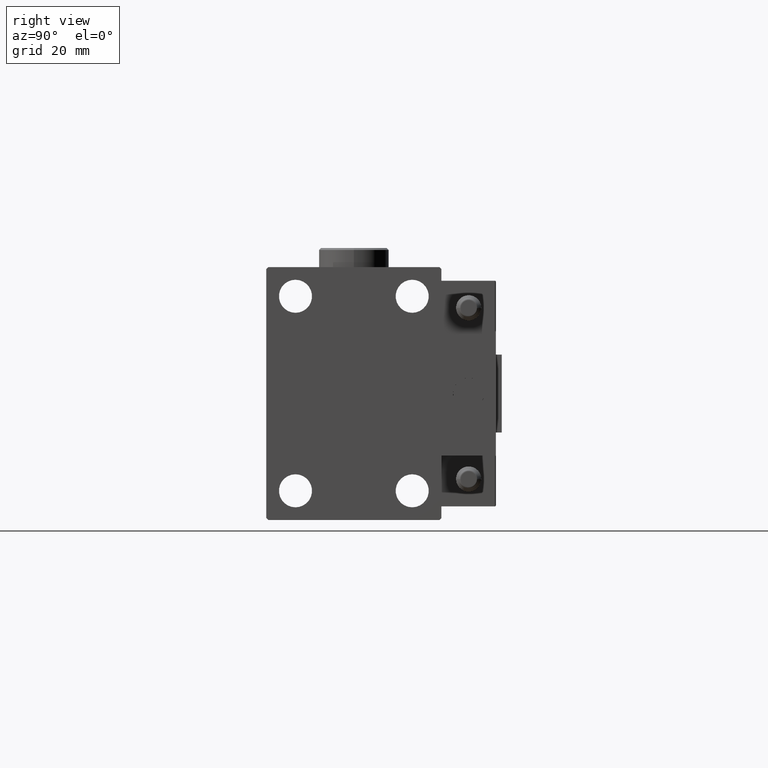
[diagram: clean part render]
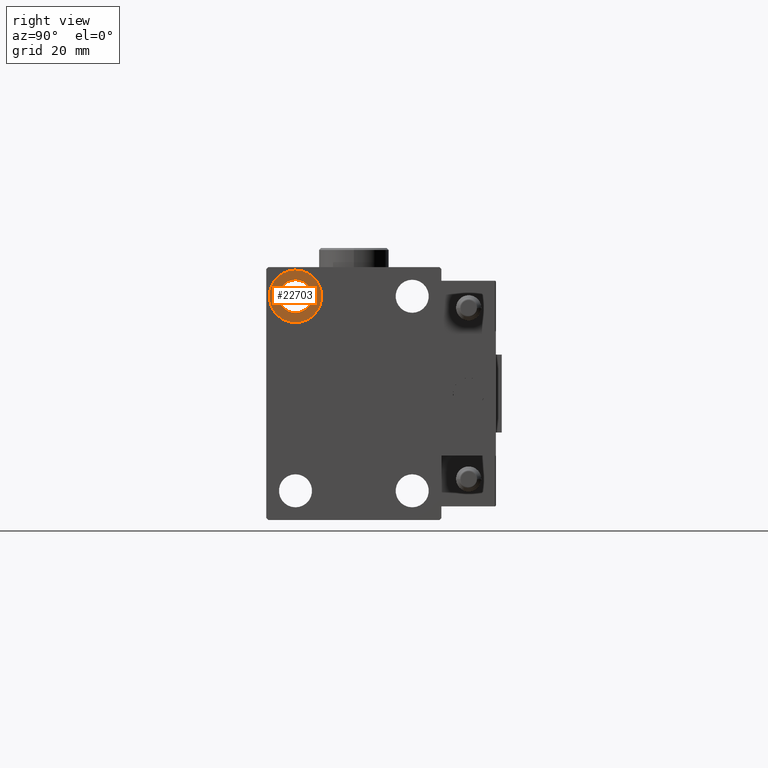
[diagram: same view with one face highlighted and labeled with its STEP entity id]
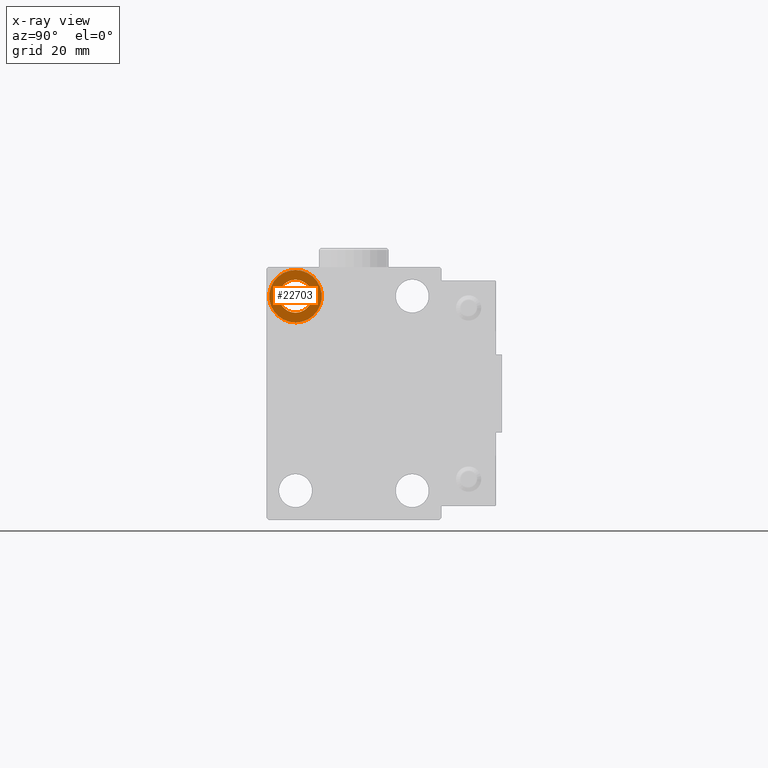
[diagram: x-ray of the same camera — body ghosted, the highlighted face saturated]
A machine part, right view. The second image highlights one B-rep face of the part: STEP entity #22703.
The next image is the same camera in x-ray: the body ghosted, the highlighted face saturated — about 0% of this face is hidden behind the body in this view.
In plain terms, the highlighted planar face has unit normal (1, 0, 0).
Its self-contained STEP definition (entity closure, byte-faithful):
#1112 = EDGE_LOOP ( 'NONE', ( #15717, #45327 ) ) ;
#2054 = EDGE_LOOP ( 'NONE', ( #16784, #42307 ) ) ;
#2345 = EDGE_CURVE ( 'NONE', #34493, #39694, #43726, .T. ) ;
#4239 = AXIS2_PLACEMENT_3D ( 'NONE', #6841, #17877, #33839 ) ;
#6841 = CARTESIAN_POINT ( 'NONE',  ( 61.00000000000000711, -14.99999999999999645, 25.00000000000000000 ) ) ;
#8671 = VERTEX_POINT ( 'NONE', #30948 ) ;
#9299 = CIRCLE ( 'NONE', #41080, 6.749999999999999112 ) ;
#9680 = DIRECTION ( 'NONE',  ( -1.000000000000000000, -0.000000000000000000, -0.000000000000000000 ) ) ;
#13920 = AXIS2_PLACEMENT_3D ( 'NONE', #20431, #32203, #23843 ) ;
#15717 = ORIENTED_EDGE ( 'NONE', *, *, #31730, .T. ) ;
#16238 = FACE_OUTER_BOUND ( 'NONE', #2054, .T. ) ;
#16784 = ORIENTED_EDGE ( 'NONE', *, *, #2345, .F. ) ;
#16811 = CIRCLE ( 'NONE', #4239, 4.249999999999996447 ) ;
#17877 = DIRECTION ( 'NONE',  ( -1.000000000000000000, -0.000000000000000000, -0.000000000000000000 ) ) ;
#19969 = AXIS2_PLACEMENT_3D ( 'NONE', #36904, #9680, #41897 ) ;
#20431 = CARTESIAN_POINT ( 'NONE',  ( 61.00000000000000711, 0.000000000000000000, 0.000000000000000000 ) ) ;
#22492 = CARTESIAN_POINT ( 'NONE',  ( 61.00000000000000711, -14.99999999999999645, 25.00000000000000000 ) ) ;
#22703 = ADVANCED_FACE ( 'NONE', ( #16238, #24096 ), #36651, .T. ) ;
#23635 = AXIS2_PLACEMENT_3D ( 'NONE', #33223, #49225, #29294 ) ;
#23725 = DIRECTION ( 'NONE',  ( 0.000000000000000000, 0.000000000000000000, 1.000000000000000000 ) ) ;
#23843 = DIRECTION ( 'NONE',  ( 0.000000000000000000, 0.000000000000000000, 1.000000000000000000 ) ) ;
#24096 = FACE_BOUND ( 'NONE', #1112, .T. ) ;
#29294 = DIRECTION ( 'NONE',  ( 0.000000000000000000, 0.000000000000000000, 1.000000000000000000 ) ) ;
#30948 = CARTESIAN_POINT ( 'NONE',  ( 61.00000000000000711, -14.99999999999999645, 29.25000000000000000 ) ) ;
#31730 = EDGE_CURVE ( 'NONE', #8671, #41892, #16811, .T. ) ;
#32203 = DIRECTION ( 'NONE',  ( 1.000000000000000000, 0.000000000000000000, -0.000000000000000000 ) ) ;
#33223 = CARTESIAN_POINT ( 'NONE',  ( 61.00000000000000711, -14.99999999999999645, 25.00000000000000000 ) ) ;
#33499 = CARTESIAN_POINT ( 'NONE',  ( 61.00000000000000711, -14.99999999999999645, 18.25000000000000355 ) ) ;
#33839 = DIRECTION ( 'NONE',  ( 0.000000000000000000, 0.000000000000000000, -1.000000000000000000 ) ) ;
#34493 = VERTEX_POINT ( 'NONE', #33499 ) ;
#34525 = DIRECTION ( 'NONE',  ( -1.000000000000000000, -0.000000000000000000, -0.000000000000000000 ) ) ;
#34980 = CIRCLE ( 'NONE', #19969, 4.249999999999996447 ) ;
#36651 = PLANE ( 'NONE',  #13920 ) ;
#36904 = CARTESIAN_POINT ( 'NONE',  ( 61.00000000000000711, -14.99999999999999645, 25.00000000000000000 ) ) ;
#39694 = VERTEX_POINT ( 'NONE', #44660 ) ;
#41080 = AXIS2_PLACEMENT_3D ( 'NONE', #22492, #34525, #23725 ) ;
#41386 = EDGE_CURVE ( 'NONE', #41892, #8671, #34980, .T. ) ;
#41892 = VERTEX_POINT ( 'NONE', #47021 ) ;
#41897 = DIRECTION ( 'NONE',  ( 0.000000000000000000, 0.000000000000000000, -1.000000000000000000 ) ) ;
#42307 = ORIENTED_EDGE ( 'NONE', *, *, #46060, .F. ) ;
#43726 = CIRCLE ( 'NONE', #23635, 6.749999999999999112 ) ;
#44660 = CARTESIAN_POINT ( 'NONE',  ( 61.00000000000000711, -14.99999999999999645, 31.75000000000000000 ) ) ;
#45327 = ORIENTED_EDGE ( 'NONE', *, *, #41386, .T. ) ;
#46060 = EDGE_CURVE ( 'NONE', #39694, #34493, #9299, .T. ) ;
#47021 = CARTESIAN_POINT ( 'NONE',  ( 61.00000000000000711, -14.99999999999999645, 20.75000000000000355 ) ) ;
#49225 = DIRECTION ( 'NONE',  ( -1.000000000000000000, -0.000000000000000000, -0.000000000000000000 ) ) ;